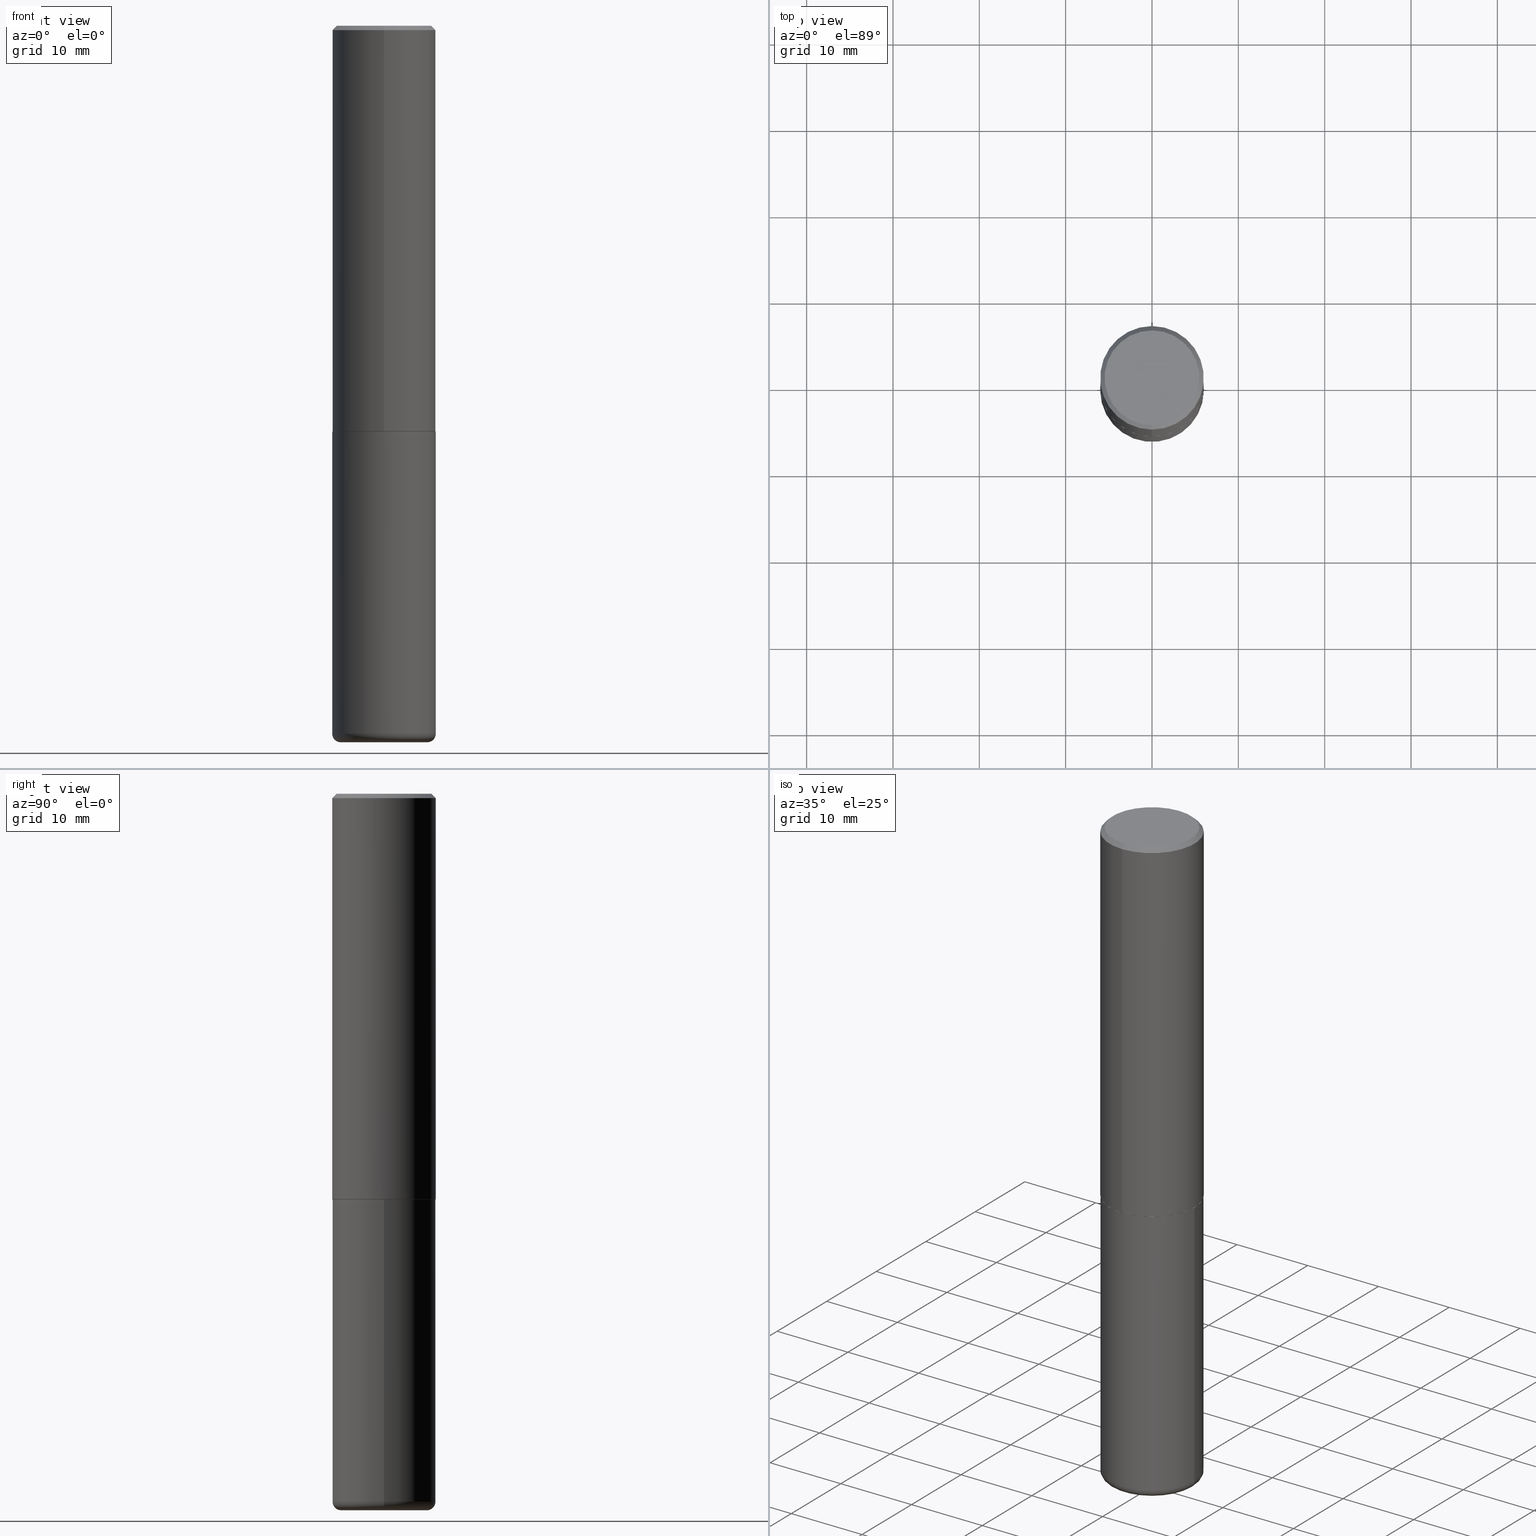
[diagram: canonical four-view strip — front | top / right | iso, engineering-drawing reading convention]
A machine part, canonical four-view strip (front | top / right | iso — engineering-drawing reading convention). The complete STEP part file that produces these views, byte-faithful:
ISO-10303-21;
HEADER;
FILE_DESCRIPTION (( 'STEP AP203' ),
    '1' );
FILE_NAME ('47540.STEP',
    '2024-03-06T08:59:26',
    ( '' ),
    ( '' ),
    'SwSTEP 2.0',
    'SolidWorks 2023',
    '' );
FILE_SCHEMA (( 'CONFIG_CONTROL_DESIGN' ));
ENDSEC;

DATA;
#1 = CIRCLE ( 'NONE', #264, 0.1968000000000000027 ) ;
#2 = FACE_OUTER_BOUND ( 'NONE', #26, .T. ) ;
#3 = DIRECTION ( 'NONE',  ( -6.982962677686265922E-15, -1.000000000000000000, 3.487819265831411744E-15 ) ) ;
#4 = CYLINDRICAL_SURFACE ( 'NONE', #361, 0.2361999999999999933 ) ;
#5 = DATE_AND_TIME ( #202, #412 ) ;
#6 = EDGE_CURVE ( 'NONE', #405, #23, #16, .T. ) ;
#7 = APPROVAL_ROLE ( '' ) ;
#8 = AXIS2_PLACEMENT_3D ( 'NONE', #124, #70, #223 ) ;
#9 = CC_DESIGN_PERSON_AND_ORGANIZATION_ASSIGNMENT ( #299, #262, ( #174 ) ) ;
#10 = PERSON_AND_ORGANIZATION ( #177, #367 ) ;
#11 = ORIENTED_EDGE ( 'NONE', *, *, #6, .T. ) ;
#12 = CALENDAR_DATE ( 2024, 6, 3 ) ;
#13 = CARTESIAN_POINT ( 'NONE',  ( 4.525095478964977394E-29, -6.460637069395357576E-15, -1.850400000000000267 ) ) ;
#14 = EDGE_CURVE ( 'NONE', #62, #343, #1, .T. ) ;
#15 = PERSON_AND_ORGANIZATION_ROLE ( 'design_owner' ) ;
#16 = CIRCLE ( 'NONE', #342, 0.2361999999999999933 ) ;
#17 = PRODUCT_DEFINITION_FORMATION_WITH_SPECIFIED_SOURCE ( 'ANY', '', #333, .NOT_KNOWN. ) ;
#18 = ORIENTED_EDGE ( 'NONE', *, *, #175, .T. ) ;
#19 = CIRCLE ( 'NONE', #350, 0.2361999999999999933 ) ;
#20 = EDGE_LOOP ( 'NONE', ( #183, #285, #193, #219 ) ) ;
#21 = DIRECTION ( 'NONE',  ( -4.851104656540961908E-15, -0.7071067811865496822, -0.7071067811865453523 ) ) ;
#22 = DIRECTION ( 'NONE',  ( -1.000000000000000000, 7.105427357601014480E-15, 0.000000000000000000 ) ) ;
#23 = VERTEX_POINT ( 'NONE', #382 ) ;
#24 = EDGE_CURVE ( 'NONE', #255, #93, #68, .T. ) ;
#25 = DIRECTION ( 'NONE',  ( 7.105427357601001859E-15, 1.000000000000000000, -3.491481338843145583E-15 ) ) ;
#26 = EDGE_LOOP ( 'NONE', ( #216, #101, #114, #400 ) ) ;
#27 = APPLICATION_PROTOCOL_DEFINITION ( 'international standard', 'config_control_design', 1994, #353 ) ;
#28 = CARTESIAN_POINT ( 'NONE',  ( 0.2362000000000000210, -1.292092499065682375E-14, -3.228299999999999947 ) ) ;
#29 = DIRECTION ( 'NONE',  ( -2.445468806185136597E-29, 3.491481338843145583E-15, 1.000000000000000000 ) ) ;
#30 = DIRECTION ( 'NONE',  ( 1.000000000000000000, 0.000000000000000000, 0.000000000000000000 ) ) ;
#31 = PLANE ( 'NONE',  #306 ) ;
#32 = DIRECTION ( 'NONE',  ( 1.000000000000000000, -6.982962677686269077E-15, 0.000000000000000000 ) ) ;
#33 = AXIS2_PLACEMENT_3D ( 'NONE', #407, #280, #91 ) ;
#34 = ORIENTED_EDGE ( 'NONE', *, *, #354, .T. ) ;
#35 = CARTESIAN_POINT ( 'NONE',  ( 1.649375784469496525E-15, 0.2361999999999999378, -0.02000000000000087472 ) ) ;
#36 = AXIS2_PLACEMENT_3D ( 'NONE', #286, #283, #94 ) ;
#37 = MANIFOLD_SOLID_BREP ( 'Body-Move/Copy2[2]', #141 ) ;
#38 = CARTESIAN_POINT ( 'NONE',  ( 1.678301941865357183E-15, 0.2362000000000001043, -8.247206622664545710E-16 ) ) ;
#39 = MANIFOLD_SOLID_BREP ( 'Body-Move/Copy2[1]', #72 ) ;
#40 = ORIENTED_EDGE ( 'NONE', *, *, #14, .T. ) ;
#41 = DATE_AND_TIME ( #390, #377 ) ;
#42 = PERSON_AND_ORGANIZATION ( #177, #367 ) ;
#43 = APPLICATION_PROTOCOL_DEFINITION ( 'international standard', 'config_control_design', 1994, #364 ) ;
#44 = CIRCLE ( 'NONE', #187, 0.2361999999999999933 ) ;
#45 = EDGE_CURVE ( 'NONE', #93, #256, #385, .T. ) ;
#46 = PERSON_AND_ORGANIZATION ( #177, #367 ) ;
#47 = VERTEX_POINT ( 'NONE', #198 ) ;
#48 = FACE_OUTER_BOUND ( 'NONE', #371, .T. ) ;
#49 = ORIENTED_EDGE ( 'NONE', *, *, #24, .F. ) ;
#50 = PERSON_AND_ORGANIZATION_ROLE ( 'design_supplier' ) ;
#51 = AXIS2_PLACEMENT_3D ( 'NONE', #59, #87, #288 ) ;
#52 = CARTESIAN_POINT ( 'NONE',  ( 7.894706947007477118E-29, -1.127154920618732880E-14, -3.228299999999999947 ) ) ;
#53 = PLANE ( 'NONE',  #356 ) ;
#54 = ADVANCED_BREP_SHAPE_REPRESENTATION ( '47540', ( #39, #37, #307 ), #357 ) ;
#55 = ORIENTED_EDGE ( 'NONE', *, *, #254, .T. ) ;
#56 = ORIENTED_EDGE ( 'NONE', *, *, #287, .T. ) ;
#57 = CIRCLE ( 'NONE', #296, 0.03940000000000005997 ) ;
#58 = DIRECTION ( 'NONE',  ( 2.445371925614294233E-29, -3.491620077334691546E-15, -1.000000000000000000 ) ) ;
#59 = CARTESIAN_POINT ( 'NONE',  ( 7.991058417971171713E-29, -1.140911357093774644E-14, -3.267700000000000049 ) ) ;
#60 = ORIENTED_EDGE ( 'NONE', *, *, #354, .F. ) ;
#61 = FACE_OUTER_BOUND ( 'NONE', #157, .T. ) ;
#62 = VERTEX_POINT ( 'NONE', #168 ) ;
#63 = CARTESIAN_POINT ( 'NONE',  ( 4.524916211156691287E-29, -6.460893791100115503E-15, -1.850400000000000489 ) ) ;
#64 = ADVANCED_FACE ( 'NONE', ( #143 ), #169, .T. ) ;
#65 = DIRECTION ( 'NONE',  ( -2.445371925614294233E-29, 3.491620077334691546E-15, 1.000000000000000000 ) ) ;
#66 = AXIS2_PLACEMENT_3D ( 'NONE', #115, #65, #317 ) ;
#67 = APPROVAL_PERSON_ORGANIZATION ( #164, #181, #76 ) ;
#68 = LINE ( 'NONE', #318, #83 ) ;
#69 = EDGE_CURVE ( 'NONE', #23, #405, #232, .T. ) ;
#70 = DIRECTION ( 'NONE',  ( -2.445371925614294233E-29, 3.491620077334691546E-15, 1.000000000000000000 ) ) ;
#71 = FACE_OUTER_BOUND ( 'NONE', #73, .T. ) ;
#72 = CLOSED_SHELL ( 'NONE', ( #335, #309, #102, #227, #64, #279 ) ) ;
#73 = EDGE_LOOP ( 'NONE', ( #327, #365, #135, #311 ) ) ;
#74 = PRODUCT_DEFINITION_SHAPE ( 'NONE', 'NONE',  #174 ) ;
#75 = ORIENTED_EDGE ( 'NONE', *, *, #269, .F. ) ;
#76 = APPROVAL_ROLE ( '' ) ;
#77 = CALENDAR_DATE ( 2024, 6, 3 ) ;
#78 = AXIS2_PLACEMENT_3D ( 'NONE', #406, #248, #378 ) ;
#79 = ADVANCED_FACE ( 'NONE', ( #402 ), #142, .T. ) ;
#80 = CARTESIAN_POINT ( 'NONE',  ( -1.649375784469452349E-15, -0.2362000000000066546, -1.849399999999999489 ) ) ;
#81 = VERTEX_POINT ( 'NONE', #173 ) ;
#82 = CARTESIAN_POINT ( 'NONE',  ( 4.524916211156691287E-29, -6.460893791100115503E-15, -1.850400000000000489 ) ) ;
#83 = VECTOR ( 'NONE', #418, 39.37007874015748143 ) ;
#84 = DIRECTION ( 'NONE',  ( -6.982962677686265922E-15, -1.000000000000000000, 3.491620077334691941E-15 ) ) ;
#85 = ADVANCED_FACE ( 'NONE', ( #301 ), #178, .T. ) ;
#86 = DIRECTION ( 'NONE',  ( -2.445371925614294233E-29, 3.491620077334691546E-15, 1.000000000000000000 ) ) ;
#87 = DIRECTION ( 'NONE',  ( -2.445468806185136597E-29, 3.491481338843145583E-15, 1.000000000000000000 ) ) ;
#88 = AXIS2_PLACEMENT_3D ( 'NONE', #329, #127, #388 ) ;
#89 = CARTESIAN_POINT ( 'NONE',  ( 0.1968000000000000027, -1.264579626115598374E-14, -3.228299999999999947 ) ) ;
#90 = ORIENTED_EDGE ( 'NONE', *, *, #254, .F. ) ;
#91 = DIRECTION ( 'NONE',  ( -6.982962677686265922E-15, -1.000000000000000000, 3.491620077334691546E-15 ) ) ;
#92 = DIRECTION ( 'NONE',  ( -2.445468806185136597E-29, 3.491481338843145583E-15, 1.000000000000000000 ) ) ;
#93 = VERTEX_POINT ( 'NONE', #80 ) ;
#94 = DIRECTION ( 'NONE',  ( -6.982962677686265133E-15, -1.000000000000000000, 3.469747663417773847E-15 ) ) ;
#95 = CARTESIAN_POINT ( 'NONE',  ( -1.642392821791764560E-15, -0.2352000000000064595, -1.850399999999999823 ) ) ;
#96 = VERTEX_POINT ( 'NONE', #208 ) ;
#97 = DIRECTION ( 'NONE',  ( 6.982962677686265922E-15, 1.000000000000000000, -3.487819265831411744E-15 ) ) ;
#98 = VECTOR ( 'NONE', #21, 39.37007874015748143 ) ;
#99 = CARTESIAN_POINT ( 'NONE',  ( -1.649375784469496722E-15, -0.2362000000000001043, 8.247206622664545710E-16 ) ) ;
#100 = ORIENTED_EDGE ( 'NONE', *, *, #131, .F. ) ;
#101 = ORIENTED_EDGE ( 'NONE', *, *, #200, .T. ) ;
#102 = ADVANCED_FACE ( 'NONE', ( #48 ), #53, .F. ) ;
#103 = PERSON_AND_ORGANIZATION_ROLE ( 'classification_officer' ) ;
#104 = DIRECTION ( 'NONE',  ( -1.000000000000000000, 6.982962677686265922E-15, -4.876176775795935793E-29 ) ) ;
#105 = AXIS2_PLACEMENT_3D ( 'NONE', #369, #334, #239 ) ;
#106 = SHAPE_DEFINITION_REPRESENTATION ( #74, #54 ) ;
#107 = PLANE ( 'NONE',  #33 ) ;
#108 = DATE_AND_TIME ( #12, #156 ) ;
#109 = CARTESIAN_POINT ( 'NONE',  ( 7.991058417971171713E-29, -1.140911357093774644E-14, -3.267700000000000049 ) ) ;
#110 = PERSON_AND_ORGANIZATION_ROLE ( 'creator' ) ;
#111 = AXIS2_PLACEMENT_3D ( 'NONE', #182, #146, #375 ) ;
#112 = DIRECTION ( 'NONE',  ( -2.445468806185136597E-29, 3.491481338843145583E-15, 1.000000000000000000 ) ) ;
#113 = EDGE_CURVE ( 'NONE', #148, #47, #44, .T. ) ;
#114 = ORIENTED_EDGE ( 'NONE', *, *, #113, .F. ) ;
#115 = CARTESIAN_POINT ( 'NONE',  ( 4.524916211156691287E-29, -6.460893791100115503E-15, -1.850400000000000489 ) ) ;
#116 = CARTESIAN_POINT ( 'NONE',  ( 4.890743851228601113E-31, -6.983240154669400497E-17, -0.02000000000000005246 ) ) ;
#117 = ORIENTED_EDGE ( 'NONE', *, *, #205, .T. ) ;
#118 = APPROVAL ( #234, 'UNSPECIFIED' ) ;
#119 = CARTESIAN_POINT ( 'NONE',  ( 0.000000000000000000, 0.000000000000000000, 0.000000000000000000 ) ) ;
#120 = ORIENTED_EDGE ( 'NONE', *, *, #200, .F. ) ;
#121 = DIRECTION ( 'NONE',  ( 6.982962677686265922E-15, 1.000000000000000000, -3.487819265831411744E-15 ) ) ;
#122 = CARTESIAN_POINT ( 'NONE',  ( 7.991058417971171713E-29, -1.140911357093774644E-14, -3.267700000000000049 ) ) ;
#123 = LINE ( 'NONE', #319, #237 ) ;
#124 = CARTESIAN_POINT ( 'NONE',  ( 4.890743851228601113E-31, -6.983240154669400497E-17, -0.02000000000000005246 ) ) ;
#125 = CARTESIAN_POINT ( 'NONE',  ( 0.000000000000000000, 0.000000000000000000, 0.000000000000000000 ) ) ;
#126 = CIRCLE ( 'NONE', #360, 0.2161999999999996425 ) ;
#127 = DIRECTION ( 'NONE',  ( -2.445371925614294233E-29, 3.491620077334691546E-15, 1.000000000000000000 ) ) ;
#128 =( NAMED_UNIT ( * ) PLANE_ANGLE_UNIT ( ) SI_UNIT ( $, .RADIAN. ) );
#129 = EDGE_CURVE ( 'NONE', #201, #256, #144, .T. ) ;
#130 = APPROVAL_DATE_TIME ( #5, #181 ) ;
#131 = EDGE_CURVE ( 'NONE', #343, #62, #324, .T. ) ;
#132 = CIRCLE ( 'NONE', #145, 0.03940000000000005997 ) ;
#133 = APPROVAL_ROLE ( '' ) ;
#134 = ADVANCED_FACE ( 'NONE', ( #352 ), #153, .T. ) ;
#135 = ORIENTED_EDGE ( 'NONE', *, *, #69, .F. ) ;
#136 = APPROVAL_STATUS ( 'not_yet_approved' ) ;
#137 = CC_DESIGN_PERSON_AND_ORGANIZATION_ASSIGNMENT ( #42, #50, ( #17 ) ) ;
#138 = APPROVAL_DATE_TIME ( #108, #276 ) ;
#139 = EDGE_LOOP ( 'NONE', ( #100, #409 ) ) ;
#140 = PERSON_AND_ORGANIZATION ( #177, #367 ) ;
#141 = CLOSED_SHELL ( 'NONE', ( #85, #79, #184, #261, #233, #134, #298, #247 ) ) ;
#142 = CYLINDRICAL_SURFACE ( 'NONE', #291, 0.2362000000000001043 ) ;
#143 = FACE_OUTER_BOUND ( 'NONE', #358, .T. ) ;
#144 = LINE ( 'NONE', #275, #98 ) ;
#145 = AXIS2_PLACEMENT_3D ( 'NONE', #215, #25, #22 ) ;
#146 = DIRECTION ( 'NONE',  ( -2.445371925614294233E-29, 3.491620077334691546E-15, 1.000000000000000000 ) ) ;
#147 = EDGE_CURVE ( 'NONE', #343, #148, #57, .T. ) ;
#148 = VERTEX_POINT ( 'NONE', #28 ) ;
#149 = CARTESIAN_POINT ( 'NONE',  ( 4.524916211156691287E-29, -6.460893791100115503E-15, -1.850400000000000489 ) ) ;
#150 = FACE_OUTER_BOUND ( 'NONE', #252, .T. ) ;
#151 = EDGE_LOOP ( 'NONE', ( #221, #229, #34, #117 ) ) ;
#152 = DIRECTION ( 'NONE',  ( -2.445468806185136877E-29, 3.491481338843145188E-15, 1.000000000000000000 ) ) ;
#153 = CONICAL_SURFACE ( 'NONE', #162, 0.2351999999999999924, 0.7853981633973801113 ) ;
#154 = CYLINDRICAL_SURFACE ( 'NONE', #366, 0.2362000000000001043 ) ;
#155 = EDGE_CURVE ( 'NONE', #47, #148, #328, .T. ) ;
#156 = LOCAL_TIME ( 3, 59, 26.00000000000000000, #332 ) ;
#157 = EDGE_LOOP ( 'NONE', ( #411, #206, #268, #60 ) ) ;
#158 = FACE_OUTER_BOUND ( 'NONE', #151, .T. ) ;
#159 = DIRECTION ( 'NONE',  ( -6.982962677686265133E-15, -1.000000000000000000, 3.484499991918703113E-15 ) ) ;
#160 = ORIENTED_EDGE ( 'NONE', *, *, #401, .T. ) ;
#161 = CARTESIAN_POINT ( 'NONE',  ( 1.579546157692632438E-15, 0.2161999999999996425, -4.261828037201549199E-16 ) ) ;
#162 = AXIS2_PLACEMENT_3D ( 'NONE', #149, #417, #251 ) ;
#163 = CARTESIAN_POINT ( 'NONE',  ( -0.2361999999999999933, -7.187791195925986796E-15, -1.850400000000000267 ) ) ;
#164 = PERSON_AND_ORGANIZATION ( #177, #367 ) ;
#165 = DIRECTION ( 'NONE',  ( -2.445371925614294233E-29, 3.491620077334691546E-15, 1.000000000000000000 ) ) ;
#166 = SECURITY_CLASSIFICATION_LEVEL ( 'unclassified' ) ;
#167 = DIRECTION ( 'NONE',  ( 2.438088387897960049E-29, -3.491481338843145188E-15, -1.000000000000000000 ) ) ;
#168 = CARTESIAN_POINT ( 'NONE',  ( -0.1968000000000000027, -9.802006365641922115E-15, -3.267700000000000049 ) ) ;
#169 = TOROIDAL_SURFACE ( 'NONE', #105, 0.1968000000000000027, 0.03940000000000005997 ) ;
#170 = SECURITY_CLASSIFICATION ( '', '', #166 ) ;
#171 = EDGE_LOOP ( 'NONE', ( #277, #160, #217, #359 ) ) ;
#172 = COORDINATED_UNIVERSAL_TIME_OFFSET ( 5, 0, .BEHIND. ) ;
#173 = CARTESIAN_POINT ( 'NONE',  ( 1.674749228186601644E-15, 0.2351999999999935531, -1.850400000000001377 ) ) ;
#174 = PRODUCT_DEFINITION ( 'UNKNOWN', '', #17, #224 ) ;
#175 = EDGE_CURVE ( 'NONE', #81, #323, #346, .T. ) ;
#176 = ORIENTED_EDGE ( 'NONE', *, *, #205, .F. ) ;
#177 = PERSON ( 'UNSPECIFIED', 'UNSPECIFIED', 'UNSPECIFIED', ('UNSPECIFIED'), ('UNSPECIFIED'), ('UNSPECIFIED') ) ;
#178 = CONICAL_SURFACE ( 'NONE', #236, 0.2351999999999999924, 0.7853981633973801113 ) ;
#179 = CIRCLE ( 'NONE', #242, 0.2351999999999999924 ) ;
#180 = CARTESIAN_POINT ( 'NONE',  ( -1.551844647095918761E-15, -0.2161999999999996425, 1.083593717719362934E-15 ) ) ;
#181 = APPROVAL ( #136, 'UNSPECIFIED' ) ;
#182 = CARTESIAN_POINT ( 'NONE',  ( 4.522470839231075964E-29, -6.457402171022779437E-15, -1.849400000000000155 ) ) ;
#183 = ORIENTED_EDGE ( 'NONE', *, *, #340, .T. ) ;
#184 = ADVANCED_FACE ( 'NONE', ( #61 ), #336, .T. ) ;
#185 = ORIENTED_EDGE ( 'NONE', *, *, #401, .F. ) ;
#186 =( LENGTH_UNIT ( ) NAMED_UNIT ( * ) SI_UNIT ( $, .METRE. ) );
#187 = AXIS2_PLACEMENT_3D ( 'NONE', #52, #112, #304 ) ;
#188 = CC_DESIGN_APPROVAL ( #118, ( #174 ) ) ;
#189 = DIRECTION ( 'NONE',  ( -2.445371925614294233E-29, 3.491620077334691546E-15, 1.000000000000000000 ) ) ;
#190 = ORIENTED_EDGE ( 'NONE', *, *, #303, .T. ) ;
#191 = CARTESIAN_POINT ( 'NONE',  ( 0.000000000000000000, 0.000000000000000000, 0.000000000000000000 ) ) ;
#192 = CYLINDRICAL_SURFACE ( 'NONE', #386, 0.2361999999999999933 ) ;
#193 = ORIENTED_EDGE ( 'NONE', *, *, #263, .F. ) ;
#194 = EDGE_CURVE ( 'NONE', #47, #405, #245, .T. ) ;
#195 = DIMENSIONAL_EXPONENTS ( 1.000000000000000000, 0.000000000000000000, 0.000000000000000000, 0.000000000000000000, 0.000000000000000000, 0.000000000000000000, 0.000000000000000000 ) ;
#196 = DIRECTION ( 'NONE',  ( -2.445371925614294233E-29, 3.491620077334691546E-15, 1.000000000000000000 ) ) ;
#197 = TOROIDAL_SURFACE ( 'NONE', #246, 0.1968000000000000027, 0.03940000000000005997 ) ;
#198 = CARTESIAN_POINT ( 'NONE',  ( -0.2362000000000000210, -9.593247264321970832E-15, -3.228299999999999947 ) ) ;
#199 = DATE_TIME_ROLE ( 'creation_date' ) ;
#200 = EDGE_CURVE ( 'NONE', #62, #47, #132, .T. ) ;
#201 = VERTEX_POINT ( 'NONE', #180 ) ;
#202 = CALENDAR_DATE ( 2024, 6, 3 ) ;
#203 = AXIS2_PLACEMENT_3D ( 'NONE', #384, #92, #281 ) ;
#204 = CC_DESIGN_APPROVAL ( #181, ( #170 ) ) ;
#205 = EDGE_CURVE ( 'NONE', #96, #256, #391, .T. ) ;
#206 = ORIENTED_EDGE ( 'NONE', *, *, #129, .T. ) ;
#207 = COORDINATED_UNIVERSAL_TIME_OFFSET ( 5, 0, .BEHIND. ) ;
#208 = CARTESIAN_POINT ( 'NONE',  ( 1.649375784469496525E-15, 0.2361999999999999378, -0.02000000000000087472 ) ) ;
#209 = CIRCLE ( 'NONE', #111, 0.2362000000000002153 ) ;
#210 = EDGE_CURVE ( 'NONE', #323, #93, #209, .T. ) ;
#211 = ORIENTED_EDGE ( 'NONE', *, *, #45, .T. ) ;
#212 = CARTESIAN_POINT ( 'NONE',  ( -1.620449627073635079E-15, -0.2362000000000000766, -0.01999999999999922673 ) ) ;
#213 = ORIENTED_EDGE ( 'NONE', *, *, #194, .F. ) ;
#214 = LOCAL_TIME ( 3, 59, 26.00000000000000000, #172 ) ;
#215 = CARTESIAN_POINT ( 'NONE',  ( -0.1968000000000000027, -9.873201102211451027E-15, -3.228299999999999947 ) ) ;
#216 = ORIENTED_EDGE ( 'NONE', *, *, #131, .T. ) ;
#217 = ORIENTED_EDGE ( 'NONE', *, *, #24, .T. ) ;
#218 = CARTESIAN_POINT ( 'NONE',  ( 4.890743851228601113E-31, -6.983240154669400497E-17, -0.02000000000000005246 ) ) ;
#219 = ORIENTED_EDGE ( 'NONE', *, *, #45, .F. ) ;
#220 = DIRECTION ( 'NONE',  ( 4.937700262164545676E-15, 0.7071067811865447972, -0.7071067811865502373 ) ) ;
#221 = ORIENTED_EDGE ( 'NONE', *, *, #129, .F. ) ;
#222 = CONICAL_SURFACE ( 'NONE', #397, 0.2361999999999999933, 0.7853981633974479459 ) ;
#223 = DIRECTION ( 'NONE',  ( -6.982962677686265922E-15, -1.000000000000000000, 3.487819265831411744E-15 ) ) ;
#224 = DESIGN_CONTEXT ( 'detailed design', #364, 'design' ) ;
#225 = DIRECTION ( 'NONE',  ( -2.445371925614294233E-29, 3.491620077334691546E-15, 1.000000000000000000 ) ) ;
#226 = CARTESIAN_POINT ( 'NONE',  ( 0.1968000000000000027, -1.278336062590640454E-14, -3.267700000000000049 ) ) ;
#227 = ADVANCED_FACE ( 'NONE', ( #150 ), #192, .T. ) ;
#228 = CARTESIAN_POINT ( 'NONE',  ( 7.894706947007477118E-29, -1.127154920618732880E-14, -3.228299999999999947 ) ) ;
#229 = ORIENTED_EDGE ( 'NONE', *, *, #303, .F. ) ;
#230 = PERSON_AND_ORGANIZATION ( #177, #367 ) ;
#231 = CARTESIAN_POINT ( 'NONE',  ( -8.038070963430480451E-45, 1.147714573189292330E-30, 3.287054569996039822E-16 ) ) ;
#232 = CIRCLE ( 'NONE', #302, 0.2361999999999999933 ) ;
#233 = ADVANCED_FACE ( 'NONE', ( #310 ), #154, .T. ) ;
#234 = APPROVAL_STATUS ( 'not_yet_approved' ) ;
#235 = DIRECTION ( 'NONE',  ( -2.445468806185136597E-29, 3.491481338843145583E-15, 1.000000000000000000 ) ) ;
#236 = AXIS2_PLACEMENT_3D ( 'NONE', #82, #86, #331 ) ;
#237 = VECTOR ( 'NONE', #152, 39.37007874015748143 ) ;
#238 = DATE_AND_TIME ( #77, #351 ) ;
#239 = DIRECTION ( 'NONE',  ( 1.000000000000000000, -6.982962677686270655E-15, 4.883557194083114583E-29 ) ) ;
#240 = CARTESIAN_POINT ( 'NONE',  ( 4.525095478964977394E-29, -6.460637069395357576E-15, -1.850400000000000267 ) ) ;
#241 = CIRCLE ( 'NONE', #66, 0.2351999999999999924 ) ;
#242 = AXIS2_PLACEMENT_3D ( 'NONE', #63, #259, #159 ) ;
#243 = DIRECTION ( 'NONE',  ( -2.445371925614294233E-29, 3.491620077334691546E-15, 1.000000000000000000 ) ) ;
#244 = CARTESIAN_POINT ( 'NONE',  ( 0.000000000000000000, 0.000000000000000000, 0.000000000000000000 ) ) ;
#245 = LINE ( 'NONE', #410, #376 ) ;
#246 = AXIS2_PLACEMENT_3D ( 'NONE', #228, #322, #315 ) ;
#247 = ADVANCED_FACE ( 'NONE', ( #278 ), #414, .F. ) ;
#248 = DIRECTION ( 'NONE',  ( 2.445371925614293953E-29, -3.491620077334691546E-15, -1.000000000000000000 ) ) ;
#249 = ORIENTED_EDGE ( 'NONE', *, *, #210, .T. ) ;
#250 = CARTESIAN_POINT ( 'NONE',  ( 1.678301941865380454E-15, 0.2361999999999937760, -1.849400000000001043 ) ) ;
#251 = DIRECTION ( 'NONE',  ( -6.982962677686265133E-15, -1.000000000000000000, 3.484499991918703113E-15 ) ) ;
#252 = EDGE_LOOP ( 'NONE', ( #213, #349, #373, #379 ) ) ;
#253 = DIRECTION ( 'NONE',  ( 1.000000000000000000, -6.982962677686267499E-15, 0.000000000000000000 ) ) ;
#254 = EDGE_CURVE ( 'NONE', #255, #81, #241, .T. ) ;
#255 = VERTEX_POINT ( 'NONE', #95 ) ;
#256 = VERTEX_POINT ( 'NONE', #212 ) ;
#257 = MECHANICAL_CONTEXT ( 'NONE', #353, 'mechanical' ) ;
#258 = VECTOR ( 'NONE', #196, 39.37007874015748143 ) ;
#259 = DIRECTION ( 'NONE',  ( -2.445371925614294233E-29, 3.491620077334691546E-15, 1.000000000000000000 ) ) ;
#260 = FACE_OUTER_BOUND ( 'NONE', #139, .T. ) ;
#261 = ADVANCED_FACE ( 'NONE', ( #158 ), #222, .T. ) ;
#262 = PERSON_AND_ORGANIZATION_ROLE ( 'creator' ) ;
#263 = EDGE_CURVE ( 'NONE', #256, #96, #19, .T. ) ;
#264 = AXIS2_PLACEMENT_3D ( 'NONE', #122, #29, #290 ) ;
#265 = CC_DESIGN_APPROVAL ( #276, ( #17 ) ) ;
#266 = DATE_TIME_ROLE ( 'classification_date' ) ;
#267 = UNCERTAINTY_MEASURE_WITH_UNIT (LENGTH_MEASURE( 1.000000000000000082E-05 ), #292, 'distance_accuracy_value', 'NONE');
#268 = ORIENTED_EDGE ( 'NONE', *, *, #263, .T. ) ;
#269 = EDGE_CURVE ( 'NONE', #323, #96, #389, .T. ) ;
#270 = DIRECTION ( 'NONE',  ( 2.438088387897960049E-29, -3.491481338843145188E-15, -1.000000000000000000 ) ) ;
#271 = CIRCLE ( 'NONE', #88, 0.2161999999999996425 ) ;
#272 = APPROVAL_PERSON_ORGANIZATION ( #46, #118, #133 ) ;
#273 = CC_DESIGN_DATE_AND_TIME_ASSIGNMENT ( #238, #199, ( #174 ) ) ;
#274 = CARTESIAN_POINT ( 'NONE',  ( 0.000000000000000000, 0.000000000000000000, 0.000000000000000000 ) ) ;
#275 = CARTESIAN_POINT ( 'NONE',  ( -1.620449627073635079E-15, -0.2362000000000000766, -0.01999999999999922673 ) ) ;
#276 = APPROVAL ( #393, 'UNSPECIFIED' ) ;
#277 = ORIENTED_EDGE ( 'NONE', *, *, #175, .F. ) ;
#278 = FACE_OUTER_BOUND ( 'NONE', #347, .T. ) ;
#279 = ADVANCED_FACE ( 'NONE', ( #260 ), #31, .T. ) ;
#280 = DIRECTION ( 'NONE',  ( -2.445371925614293953E-29, 3.491620077334691546E-15, 1.000000000000000000 ) ) ;
#281 = DIRECTION ( 'NONE',  ( 1.000000000000000000, -6.982962677686265133E-15, 0.000000000000000000 ) ) ;
#282 = ORIENTED_EDGE ( 'NONE', *, *, #340, .F. ) ;
#283 = DIRECTION ( 'NONE',  ( -2.445371925614294233E-29, 3.491620077334691546E-15, 1.000000000000000000 ) ) ;
#284 = DIRECTION ( 'NONE',  ( -6.982962677686265922E-15, -1.000000000000000000, 3.491620077334691941E-15 ) ) ;
#285 = ORIENTED_EDGE ( 'NONE', *, *, #269, .T. ) ;
#286 = CARTESIAN_POINT ( 'NONE',  ( 4.522470839231075964E-29, -6.457402171022779437E-15, -1.849400000000000155 ) ) ;
#287 = EDGE_CURVE ( 'NONE', #201, #305, #126, .T. ) ;
#288 = DIRECTION ( 'NONE',  ( 1.000000000000000000, -6.982962677686271444E-15, 0.000000000000000000 ) ) ;
#289 = DIRECTION ( 'NONE',  ( -2.445468806185136597E-29, 3.491481338843145583E-15, 1.000000000000000000 ) ) ;
#290 = DIRECTION ( 'NONE',  ( 1.000000000000000000, -6.982962677686271444E-15, 0.000000000000000000 ) ) ;
#291 = AXIS2_PLACEMENT_3D ( 'NONE', #274, #243, #84 ) ;
#292 =( CONVERSION_BASED_UNIT ( 'INCH', #413 ) LENGTH_UNIT ( ) NAMED_UNIT ( #195 ) );
#293 = ORIENTED_EDGE ( 'NONE', *, *, #155, .F. ) ;
#294 = COORDINATED_UNIVERSAL_TIME_OFFSET ( 5, 0, .BEHIND. ) ;
#295 = DIRECTION ( 'NONE',  ( -6.982962677686265922E-15, -1.000000000000000000, 3.491620077334691152E-15 ) ) ;
#296 = AXIS2_PLACEMENT_3D ( 'NONE', #89, #408, #253 ) ;
#297 = CIRCLE ( 'NONE', #36, 0.2362000000000002153 ) ;
#298 = ADVANCED_FACE ( 'NONE', ( #392 ), #107, .F. ) ;
#299 = PERSON_AND_ORGANIZATION ( #177, #367 ) ;
#300 = PRODUCT_RELATED_PRODUCT_CATEGORY ( 'detail', '', ( #333 ) ) ;
#301 = FACE_OUTER_BOUND ( 'NONE', #321, .T. ) ;
#302 = AXIS2_PLACEMENT_3D ( 'NONE', #240, #235, #363 ) ;
#303 = EDGE_CURVE ( 'NONE', #305, #201, #271, .T. ) ;
#304 = DIRECTION ( 'NONE',  ( 1.000000000000000000, -6.982962677686265133E-15, 0.000000000000000000 ) ) ;
#305 = VERTEX_POINT ( 'NONE', #161 ) ;
#306 = AXIS2_PLACEMENT_3D ( 'NONE', #109, #167, #104 ) ;
#307 = AXIS2_PLACEMENT_3D ( 'NONE', #191, #383, #30 ) ;
#308 = CARTESIAN_POINT ( 'NONE',  ( 1.671196514507800548E-15, 0.2351999999999935531, -1.850400000000001377 ) ) ;
#309 = ADVANCED_FACE ( 'NONE', ( #2 ), #197, .T. ) ;
#310 = FACE_OUTER_BOUND ( 'NONE', #339, .T. ) ;
#311 = ORIENTED_EDGE ( 'NONE', *, *, #370, .F. ) ;
#312 = DIRECTION ( 'NONE',  ( 2.445371925614294233E-29, -3.491620077334691546E-15, -1.000000000000000000 ) ) ;
#313 = CARTESIAN_POINT ( 'NONE',  ( 4.525095478964977394E-29, -6.460637069395357576E-15, -1.850400000000000267 ) ) ;
#314 = VECTOR ( 'NONE', #381, 39.37007874015748143 ) ;
#315 = DIRECTION ( 'NONE',  ( 1.000000000000000000, -6.982962677686270655E-15, 4.883557194083114583E-29 ) ) ;
#316 = VECTOR ( 'NONE', #225, 39.37007874015748143 ) ;
#317 = DIRECTION ( 'NONE',  ( -6.982962677686265133E-15, -1.000000000000000000, 3.484499991918703113E-15 ) ) ;
#318 = CARTESIAN_POINT ( 'NONE',  ( -1.642392821791764560E-15, -0.2352000000000064595, -1.850399999999999823 ) ) ;
#319 = CARTESIAN_POINT ( 'NONE',  ( 0.2361999999999999933, -1.649375784469496131E-15, 1.151752954443000088E-29 ) ) ;
#320 = DIRECTION ( 'NONE',  ( -2.445468806185136597E-29, 3.491481338843145583E-15, 1.000000000000000000 ) ) ;
#321 = EDGE_LOOP ( 'NONE', ( #55, #18, #282, #49 ) ) ;
#322 = DIRECTION ( 'NONE',  ( -2.445468806185136597E-29, 3.491481338843145583E-15, 1.000000000000000000 ) ) ;
#323 = VERTEX_POINT ( 'NONE', #250 ) ;
#324 = CIRCLE ( 'NONE', #51, 0.1968000000000000027 ) ;
#325 = CC_DESIGN_PERSON_AND_ORGANIZATION_ASSIGNMENT ( #230, #15, ( #333 ) ) ;
#326 = PERSON_AND_ORGANIZATION ( #177, #367 ) ;
#327 = ORIENTED_EDGE ( 'NONE', *, *, #113, .T. ) ;
#328 = CIRCLE ( 'NONE', #203, 0.2361999999999999933 ) ;
#329 = CARTESIAN_POINT ( 'NONE',  ( -8.038070963430480451E-45, 1.147714573189292330E-30, 3.287054569996039822E-16 ) ) ;
#330 = CC_DESIGN_PERSON_AND_ORGANIZATION_ASSIGNMENT ( #326, #110, ( #17 ) ) ;
#331 = DIRECTION ( 'NONE',  ( -6.982962677686265133E-15, -1.000000000000000000, 3.484499991918703113E-15 ) ) ;
#332 = COORDINATED_UNIVERSAL_TIME_OFFSET ( 5, 0, .BEHIND. ) ;
#333 = PRODUCT ( '47540', '47540', '', ( #257 ) ) ;
#334 = DIRECTION ( 'NONE',  ( -2.445468806185136597E-29, 3.491481338843145583E-15, 1.000000000000000000 ) ) ;
#335 = ADVANCED_FACE ( 'NONE', ( #71 ), #4, .T. ) ;
#336 = CONICAL_SURFACE ( 'NONE', #403, 0.2361999999999999933, 0.7853981633974479459 ) ;
#337 = APPROVAL_PERSON_ORGANIZATION ( #10, #276, #7 ) ;
#338 = EDGE_LOOP ( 'NONE', ( #90, #185 ) ) ;
#339 = EDGE_LOOP ( 'NONE', ( #75, #249, #211, #176 ) ) ;
#340 = EDGE_CURVE ( 'NONE', #93, #323, #297, .T. ) ;
#341 = CARTESIAN_POINT ( 'NONE',  ( 4.890743851228601113E-31, -6.983240154669400497E-17, -0.02000000000000005246 ) ) ;
#342 = AXIS2_PLACEMENT_3D ( 'NONE', #313, #415, #32 ) ;
#343 = VERTEX_POINT ( 'NONE', #226 ) ;
#344 = DIRECTION ( 'NONE',  ( 1.000000000000000000, -6.982962677686266711E-15, 4.876176775795936353E-29 ) ) ;
#345 = ORIENTED_EDGE ( 'NONE', *, *, #69, .T. ) ;
#346 = LINE ( 'NONE', #308, #314 ) ;
#347 = EDGE_LOOP ( 'NONE', ( #190, #56 ) ) ;
#348 = DIRECTION ( 'NONE',  ( -2.445371925614294233E-29, 3.491620077334691546E-15, 1.000000000000000000 ) ) ;
#349 = ORIENTED_EDGE ( 'NONE', *, *, #155, .T. ) ;
#350 = AXIS2_PLACEMENT_3D ( 'NONE', #218, #348, #3 ) ;
#351 = LOCAL_TIME ( 3, 59, 26.00000000000000000, #207 ) ;
#352 = FACE_OUTER_BOUND ( 'NONE', #171, .T. ) ;
#353 = APPLICATION_CONTEXT ( 'configuration controlled 3d designs of mechanical parts and assemblies' ) ;
#354 = EDGE_CURVE ( 'NONE', #305, #96, #416, .T. ) ;
#355 = COORDINATED_UNIVERSAL_TIME_OFFSET ( 5, 0, .BEHIND. ) ;
#356 = AXIS2_PLACEMENT_3D ( 'NONE', #13, #270, #399 ) ;
#357 =( GEOMETRIC_REPRESENTATION_CONTEXT ( 3 ) GLOBAL_UNCERTAINTY_ASSIGNED_CONTEXT ( ( #267 ) ) GLOBAL_UNIT_ASSIGNED_CONTEXT ( ( #292, #128, #380 ) ) REPRESENTATION_CONTEXT ( 'NONE', 'WORKASPACE' ) );
#358 = EDGE_LOOP ( 'NONE', ( #120, #40, #368, #293 ) ) ;
#359 = ORIENTED_EDGE ( 'NONE', *, *, #210, .F. ) ;
#360 = AXIS2_PLACEMENT_3D ( 'NONE', #231, #165, #295 ) ;
#361 = AXIS2_PLACEMENT_3D ( 'NONE', #125, #289, #387 ) ;
#362 = CALENDAR_DATE ( 2024, 6, 3 ) ;
#363 = DIRECTION ( 'NONE',  ( 1.000000000000000000, -6.982962677686269077E-15, 0.000000000000000000 ) ) ;
#364 = APPLICATION_CONTEXT ( 'configuration controlled 3d designs of mechanical parts and assemblies' ) ;
#365 = ORIENTED_EDGE ( 'NONE', *, *, #194, .T. ) ;
#366 = AXIS2_PLACEMENT_3D ( 'NONE', #244, #189, #284 ) ;
#367 = ORGANIZATION ( 'UNSPECIFIED', 'UNSPECIFIED', '' ) ;
#368 = ORIENTED_EDGE ( 'NONE', *, *, #147, .T. ) ;
#369 = CARTESIAN_POINT ( 'NONE',  ( 7.894706947007477118E-29, -1.127154920618732880E-14, -3.228299999999999947 ) ) ;
#370 = EDGE_CURVE ( 'NONE', #148, #23, #123, .T. ) ;
#371 = EDGE_LOOP ( 'NONE', ( #345, #11 ) ) ;
#372 = DIRECTION ( 'NONE',  ( -2.445468806185136877E-29, 3.491481338843145188E-15, 1.000000000000000000 ) ) ;
#373 = ORIENTED_EDGE ( 'NONE', *, *, #370, .T. ) ;
#374 = CC_DESIGN_DATE_AND_TIME_ASSIGNMENT ( #41, #266, ( #170 ) ) ;
#375 = DIRECTION ( 'NONE',  ( -6.982962677686265133E-15, -1.000000000000000000, 3.469747663417773847E-15 ) ) ;
#376 = VECTOR ( 'NONE', #372, 39.37007874015748143 ) ;
#377 = LOCAL_TIME ( 3, 59, 26.00000000000000000, #355 ) ;
#378 = DIRECTION ( 'NONE',  ( 6.982962677686265922E-15, 1.000000000000000000, -3.491620077334691546E-15 ) ) ;
#379 = ORIENTED_EDGE ( 'NONE', *, *, #6, .F. ) ;
#380 =( NAMED_UNIT ( * ) SI_UNIT ( $, .STERADIAN. ) SOLID_ANGLE_UNIT ( ) );
#381 = DIRECTION ( 'NONE',  ( 5.024295867787719235E-15, 0.7071067811865017205, 0.7071067811865933139 ) ) ;
#382 = CARTESIAN_POINT ( 'NONE',  ( 0.2361999999999999933, -8.110012853864854101E-15, -1.850400000000000267 ) ) ;
#383 = DIRECTION ( 'NONE',  ( 0.000000000000000000, 0.000000000000000000, 1.000000000000000000 ) ) ;
#384 = CARTESIAN_POINT ( 'NONE',  ( 7.894706947007477118E-29, -1.127154920618732880E-14, -3.228299999999999947 ) ) ;
#385 = LINE ( 'NONE', #99, #316 ) ;
#386 = AXIS2_PLACEMENT_3D ( 'NONE', #119, #320, #344 ) ;
#387 = DIRECTION ( 'NONE',  ( 1.000000000000000000, -6.982962677686266711E-15, 4.876176775795936353E-29 ) ) ;
#388 = DIRECTION ( 'NONE',  ( -6.982962677686265922E-15, -1.000000000000000000, 3.491620077334691152E-15 ) ) ;
#389 = LINE ( 'NONE', #38, #258 ) ;
#390 = CALENDAR_DATE ( 2024, 6, 3 ) ;
#391 = CIRCLE ( 'NONE', #8, 0.2361999999999999933 ) ;
#392 = FACE_OUTER_BOUND ( 'NONE', #338, .T. ) ;
#393 = APPROVAL_STATUS ( 'not_yet_approved' ) ;
#394 = CC_DESIGN_PERSON_AND_ORGANIZATION_ASSIGNMENT ( #140, #103, ( #170 ) ) ;
#395 = DATE_AND_TIME ( #362, #214 ) ;
#396 = APPROVAL_DATE_TIME ( #395, #118 ) ;
#397 = AXIS2_PLACEMENT_3D ( 'NONE', #341, #58, #121 ) ;
#398 = VECTOR ( 'NONE', #220, 39.37007874015748143 ) ;
#399 = DIRECTION ( 'NONE',  ( -1.000000000000000000, 6.982962677686265922E-15, -4.876176775795935793E-29 ) ) ;
#400 = ORIENTED_EDGE ( 'NONE', *, *, #147, .F. ) ;
#401 = EDGE_CURVE ( 'NONE', #81, #255, #179, .T. ) ;
#402 = FACE_OUTER_BOUND ( 'NONE', #20, .T. ) ;
#403 = AXIS2_PLACEMENT_3D ( 'NONE', #116, #312, #97 ) ;
#404 = CC_DESIGN_SECURITY_CLASSIFICATION ( #170, ( #17 ) ) ;
#405 = VERTEX_POINT ( 'NONE', #163 ) ;
#406 = CARTESIAN_POINT ( 'NONE',  ( 1.509716530915768154E-15, 0.2161999999999996425, -5.905355322199570835E-16 ) ) ;
#407 = CARTESIAN_POINT ( 'NONE',  ( 4.524916211156691287E-29, -6.460893791100115503E-15, -1.850400000000000489 ) ) ;
#408 = DIRECTION ( 'NONE',  ( -6.982962677686266711E-15, -1.000000000000000000, 3.491481338843145583E-15 ) ) ;
#409 = ORIENTED_EDGE ( 'NONE', *, *, #14, .F. ) ;
#410 = CARTESIAN_POINT ( 'NONE',  ( -0.2361999999999999933, 1.678301941865356591E-15, -1.161852468318208757E-29 ) ) ;
#411 = ORIENTED_EDGE ( 'NONE', *, *, #287, .F. ) ;
#412 = LOCAL_TIME ( 3, 59, 26.00000000000000000, #294 ) ;
#413 = LENGTH_MEASURE_WITH_UNIT ( LENGTH_MEASURE( 0.02539999999999999897 ), #186 );
#414 = PLANE ( 'NONE',  #78 ) ;
#415 = DIRECTION ( 'NONE',  ( -2.445468806185136597E-29, 3.491481338843145583E-15, 1.000000000000000000 ) ) ;
#416 = LINE ( 'NONE', #35, #398 ) ;
#417 = DIRECTION ( 'NONE',  ( -2.445371925614294233E-29, 3.491620077334691546E-15, 1.000000000000000000 ) ) ;
#418 = DIRECTION ( 'NONE',  ( -4.937700262164211199E-15, -0.7071067811864968355, 0.7071067811865981989 ) ) ;
ENDSEC;
END-ISO-10303-21;
